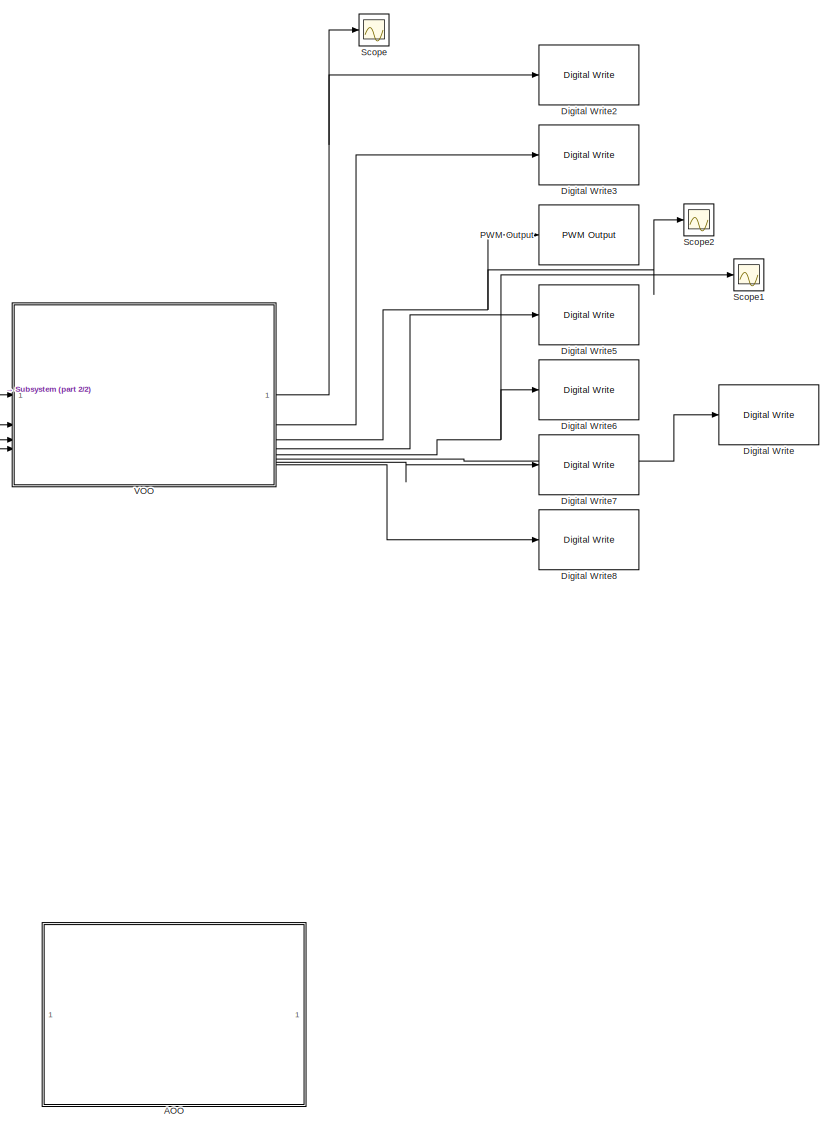
[diagram: root canvas - part 1/2, right side, full height]
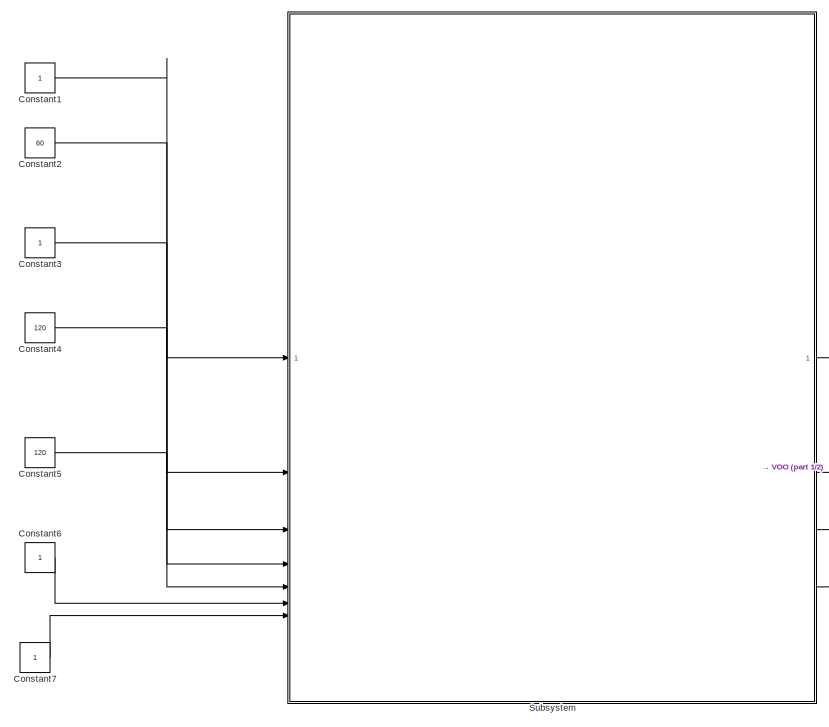
[diagram: root canvas - part 2/2, bottom left region]
MODEL slx_2bba86f6669b
KIND model
CONFIG AbsTol = auto
CONFIG EnableMultiTasking = on
CONFIG FixedStep = 1e-3
CONFIG MaxStep = auto
CONFIG MinStep = auto
CONFIG RelTol = 1e-3
CONFIG SampleTimeConstraint = Unconstrained
CONFIG SolverName = FixedStepAuto
CONFIG StartTime = 0.0
CONFIG StopTime = 10.0
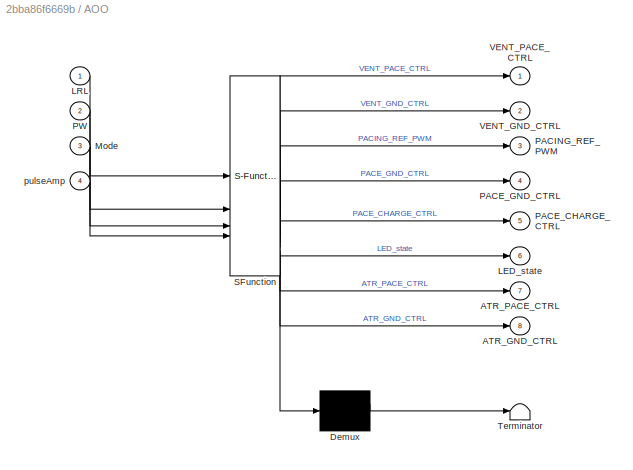
BLOCK [SubSystem] AOO
  ErrorFcn = Stateflow.Translate.translate
  PermitHierarchicalResolution = ExplicitOnly
  PortSchema = {"entries":[{"content":{"sides":[{"content":{"connectorIds":["In3","In4","In1","In2"]},"type":"ConnectorPlacement.EquallySpacedRectSide","uuid":"4a9106b9-4977-4ad7-a664-79baeb9488d7"},{"content":{"connectorIds":["Out1","Out2","Out3","Out4","Out5","Out6","Out7","Out8"],"side":"RIGHT"},"type":"ConnectorPlacement.EquallySpacedRectSide","uuid":"b9887666-f10a-4603-9f8e-4ad73175cafe"},{"content":{"conne...<+307ch>
  SFBlockType = Chart
  TreatAsAtomicUnit = on
BLOCK [Demux] AOO/ Demux 
  Outputs = 1
BLOCK [S-Function] AOO/ SFunction 
  EnableBusSupport = on
  FunctionName = sf_sfun
  PortCounts = [4 9]
  SFcnIsStateOwnerBlock = off
  SFunctionDeploymentMode = off
  Tag = Stateflow S-Function 2
BLOCK [Terminator] AOO/ Terminator 
BLOCK [Outport] AOO/ATR_GND_CTRL
  Port = 8
BLOCK [Outport] AOO/ATR_PACE_CTRL
  Port = 7
BLOCK [Outport] AOO/LED_state
  Port = 6
BLOCK [Inport] AOO/LRL
BLOCK [Inport] AOO/Mode
  Port = 3
BLOCK [Outport] AOO/PACE_CHARGE_CTRL
  Port = 5
BLOCK [Outport] AOO/PACE_GND_CTRL
  Port = 4
BLOCK [Outport] AOO/PACING_REF_PWM
  Port = 3
BLOCK [Inport] AOO/PW
  Port = 2
BLOCK [Outport] AOO/VENT_GND_CTRL
  Port = 2
BLOCK [Outport] AOO/VENT_PACE_CTRL
BLOCK [Inport] AOO/pulseAmp
  Port = 4
BLOCK [Constant] Constant1
  OutDataTypeStr = int16
BLOCK [Constant] Constant2
  OutDataTypeStr = int16
  Value = 60
BLOCK [Constant] Constant3
  OutDataTypeStr = int8
BLOCK [Constant] Constant4
  OutDataTypeStr = int8
  Value = 120
BLOCK [Constant] Constant5
  OutDataTypeStr = int8
  Value = 120
BLOCK [Constant] Constant6
  OutDataTypeStr = int8
BLOCK [Constant] Constant7
  OutDataTypeStr = int8
BLOCK [Reference] Digital Write  REF=frdmk64flib/Digital Write
  SourceBlock = frdmk64flib/Digital Write
  SourceType = freedomk64f.DigitalWrite
BLOCK [Reference] Digital Write2  REF=frdmk64flib/Digital Write
  SourceBlock = frdmk64flib/Digital Write
  SourceType = freedomk64f.DigitalWrite
BLOCK [Reference] Digital Write3  REF=frdmk64flib/Digital Write
  SourceBlock = frdmk64flib/Digital Write
  SourceType = freedomk64f.DigitalWrite
BLOCK [Reference] Digital Write5  REF=frdmk64flib/Digital Write
  SourceBlock = frdmk64flib/Digital Write
  SourceType = freedomk64f.DigitalWrite
BLOCK [Reference] Digital Write6  REF=frdmk64flib/Digital Write
  SourceBlock = frdmk64flib/Digital Write
  SourceType = freedomk64f.DigitalWrite
BLOCK [Reference] Digital Write7  REF=frdmk64flib/Digital Write
  SourceBlock = frdmk64flib/Digital Write
  SourceType = freedomk64f.DigitalWrite
BLOCK [Reference] Digital Write8  REF=frdmk64flib/Digital Write
  SourceBlock = frdmk64flib/Digital Write
  SourceType = freedomk64f.DigitalWrite
BLOCK [Reference] PWM Output  REF=frdmk64flib/PWM Output
  SourceBlock = frdmk64flib/PWM Output
  SourceType = freedomk64f.PWMOutput
BLOCK [Scope] Scope
  Floating = off
  NumInputPorts = 1
  ScopeSpecificationString = Simulink.scopes.TimeScopeBlockCfg('CurrentConfiguration', extmgr.ConfigurationSet(extmgr.Configuration('Core','General UI',true),extmgr.Configuration('Core','Source UI',true),extmgr.Configuration('Sources','WiredSimulink',true),extmgr.Configuration('Visuals','Time Domain',true,'SerializedDisplays',{struct('MinYLimReal','-0.125','MaxYLimReal','1.125','YLabelReal','','MinYLimMag','0.00000','MaxYLimM...<+1374ch>
BLOCK [Scope] Scope1
  Floating = off
  NumInputPorts = 1
  ScopeSpecificationString = Simulink.scopes.TimeScopeBlockCfg('CurrentConfiguration', extmgr.ConfigurationSet(extmgr.Configuration('Core','General UI',true),extmgr.Configuration('Core','Source UI',true),extmgr.Configuration('Sources','WiredSimulink',true,'DataLoggingVariableName','ScopeData1'),extmgr.Configuration('Visuals','Time Domain',true,'SerializedDisplays',{struct('MinYLimReal','-0.125','MaxYLimReal','1.125','YLabelRe...<+1367ch>
BLOCK [Scope] Scope2
  Floating = off
  NumInputPorts = 1
  ScopeSpecificationString = Simulink.scopes.TimeScopeBlockCfg('CurrentConfiguration', extmgr.ConfigurationSet(extmgr.Configuration('Core','General UI',true),extmgr.Configuration('Core','Source UI',true),extmgr.Configuration('Sources','WiredSimulink',true,'DataLoggingVariableName','ScopeData2'),extmgr.Configuration('Visuals','Time Domain',true,'SerializedDisplays',{struct('MinYLimReal','-1.00000','MaxYLimReal','1.00000','YLab...<+1377ch>
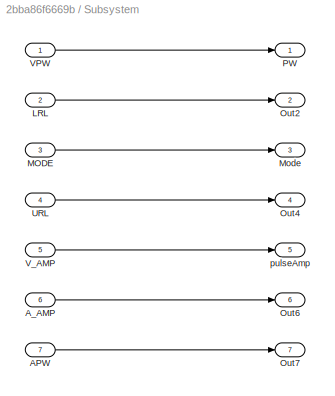
BLOCK [SubSystem] Subsystem
BLOCK [Inport] Subsystem/APW
  Port = 7
BLOCK [Inport] Subsystem/A_AMP
  Port = 6
BLOCK [Inport] Subsystem/LRL
  Port = 2
BLOCK [Inport] Subsystem/MODE
  Port = 3
BLOCK [Outport] Subsystem/Mode
  Port = 3
BLOCK [Outport] Subsystem/Out2
  Port = 2
BLOCK [Outport] Subsystem/Out4
  Port = 4
BLOCK [Outport] Subsystem/Out6
  Port = 6
BLOCK [Outport] Subsystem/Out7
  Port = 7
BLOCK [Outport] Subsystem/PW
BLOCK [Inport] Subsystem/URL
  Port = 4
BLOCK [Inport] Subsystem/VPW
BLOCK [Inport] Subsystem/V_AMP
  Port = 5
BLOCK [Outport] Subsystem/pulseAmp
  Port = 5
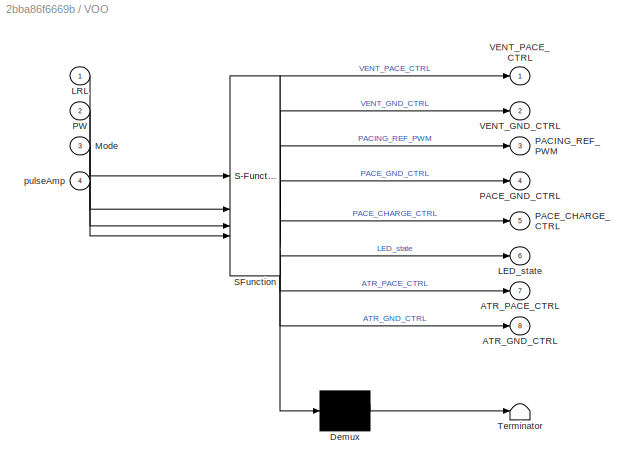
BLOCK [SubSystem] VOO
  ErrorFcn = Stateflow.Translate.translate
  PermitHierarchicalResolution = ExplicitOnly
  SFBlockType = Chart
  TreatAsAtomicUnit = on
BLOCK [Demux] VOO/ Demux 
  Outputs = 1
BLOCK [S-Function] VOO/ SFunction 
  EnableBusSupport = on
  FunctionName = sf_sfun
  PortCounts = [4 9]
  SFcnIsStateOwnerBlock = off
  SFunctionDeploymentMode = off
  Tag = Stateflow S-Function 3
BLOCK [Terminator] VOO/ Terminator 
BLOCK [Outport] VOO/ATR_GND_CTRL
  Port = 8
BLOCK [Outport] VOO/ATR_PACE_CTRL
  Port = 7
BLOCK [Outport] VOO/LED_state
  Port = 6
BLOCK [Inport] VOO/LRL
BLOCK [Inport] VOO/Mode
  Port = 3
BLOCK [Outport] VOO/PACE_CHARGE_CTRL
  Port = 5
BLOCK [Outport] VOO/PACE_GND_CTRL
  Port = 4
BLOCK [Outport] VOO/PACING_REF_PWM
  Port = 3
BLOCK [Inport] VOO/PW
  Port = 2
BLOCK [Outport] VOO/VENT_GND_CTRL
  Port = 2
BLOCK [Outport] VOO/VENT_PACE_CTRL
BLOCK [Inport] VOO/pulseAmp
  Port = 4
LINE Constant1:1 -> Subsystem:1
LINE Constant2:1 -> Subsystem:2
LINE Constant3:1 -> Subsystem:3
LINE Constant4:1 -> Subsystem:4
LINE Constant5:1 -> Subsystem:5
LINE Constant6:1 -> Subsystem:6
LINE Constant7:1 -> Subsystem:7
LINE Subsystem/APW:1 -> Subsystem/Out7:1
LINE Subsystem/A_AMP:1 -> Subsystem/Out6:1
LINE Subsystem/LRL:1 -> Subsystem/Out2:1
LINE Subsystem/MODE:1 -> Subsystem/Mode:1
LINE Subsystem/URL:1 -> Subsystem/Out4:1
LINE Subsystem/VPW:1 -> Subsystem/PW:1
LINE Subsystem/V_AMP:1 -> Subsystem/pulseAmp:1
LINE Subsystem:1 -> VOO:2
LINE Subsystem:2 -> VOO:1
LINE Subsystem:3 -> VOO:3
LINE Subsystem:5 -> VOO:4
NET VOO:1 -> Digital Write2:1, Scope:1
LINE VOO:2 -> Digital Write3:1
NET VOO:3 -> PWM Output:1, Scope2:1
LINE VOO:4 -> Digital Write5:1
NET VOO:5 -> Digital Write6:1, Scope1:1
LINE VOO:6 -> Digital Write:1
LINE VOO:7 -> Digital Write7:1
LINE VOO:8 -> Digital Write8:1
note: NET lines group one-source signal fan-out (src -> all destinations, sorted); 1:1 wires keep LINE
CHART AOO states=2 transitions=3
  STATE_LABEL 'LED_on%State2(VOO)\n%Discharging C22\nPACE_CHARGE_CTRL = false;\nPACE_GND_CTRL = true;\nVENT_PACE_CTRL = false;\nATR_PACE_CTRL = true;\nVENT_GND_CTRL = true; %not sure\nATR_GND_CTRL = false;\n%LED STATE\nLED_state = true;'
  STATE_LABEL 'LED_off %State 1(VOO)\n%Charging C22\n%Mode = 2;\nPACING_REF_PWM = (pulseAmp / 5);\nPACE_CHARGE_CTRL = true;\nVENT_PACE_CTRL = false;\nATR_PACE_CTRL = false;\n%Discharging C21\nPACE_GND_CTRL = true;\nVENT_GND_CTRL = false;\nATR_GND_CTRL = true;\n%LED STATE\nLED_state = false;\n'
CHART VOO states=2 transitions=3
  STATE_LABEL 'LED_off %State 1(VOO)\nentry:\n%Mode = 1;\n%Charging C22\nPACING_REF_PWM = (pulseAmp / 5);\nPACE_CHARGE_CTRL = true;\nVENT_PACE_CTRL = false;\nATR_PACE_CTRL = false;\n%Discharging C21\nPACE_GND_CTRL = true;\nVENT_GND_CTRL = true;\nATR_GND_CTRL = false;\n%LED STATE\nLED_state = false;\n'
  STATE_LABEL 'LED_on%State2(VOO)\nentry:\n%Mode = 1;\n%Discharging C22\nPACE_CHARGE_CTRL = false;\nPACE_GND_CTRL = true;\nVENT_PACE_CTRL = true;\nATR_PACE_CTRL = false;\nVENT_GND_CTRL = false;\nATR_GND_CTRL = true; %not sure\n%LED STATE\nLED_state = true;'
CHART  states=0 transitions=0
CHART  states=0 transitions=0
